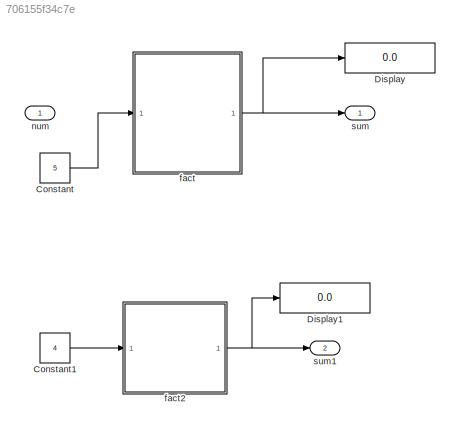
MODEL slx_706155f34c7e
KIND model
CONFIG AbsTol = auto
CONFIG EnableMultiTasking = off
CONFIG FixedStep = auto
CONFIG MaxStep = auto
CONFIG MinStep = auto
CONFIG RelTol = 1e-3
CONFIG SampleTimeConstraint = Unconstrained
CONFIG SolverName = VariableStepAuto
CONFIG StartTime = 0.0
CONFIG StopTime = 10.0
BLOCK [Constant] Constant
  OutDataTypeStr = uint32
  Value = 5
BLOCK [Constant] Constant1
  OutDataTypeStr = uint32
  Value = 4
BLOCK [Display] Display
  Decimation = 1
  Ports = [1]
BLOCK [Display] Display1
  Decimation = 1
  Ports = [1]
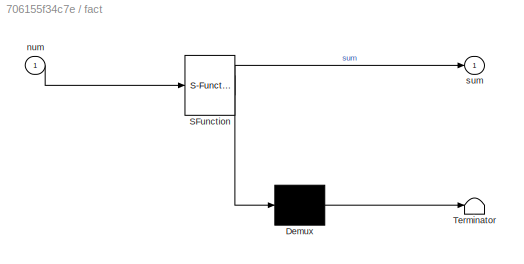
BLOCK [SubSystem] fact
  ErrorFcn = Stateflow.Translate.translate
  PermitHierarchicalResolution = ExplicitOnly
  Ports = [1, 1]
  RequestExecContextInheritance = off
  SFBlockType = Chart
  TreatAsAtomicUnit = on
BLOCK [Demux] fact/ Demux 
  Outputs = 1
  Ports = [1, 1]
BLOCK [S-Function] fact/ SFunction 
  EnableBusSupport = on
  FunctionName = sf_sfun
  PortCounts = [1 2]
  Ports = [1, 2]
  SFcnIsStateOwnerBlock = off
  SFunctionDeploymentMode = off
  Tag = Stateflow S-Function 3
BLOCK [Terminator] fact/ Terminator 
BLOCK [Inport] fact/num
BLOCK [Outport] fact/sum
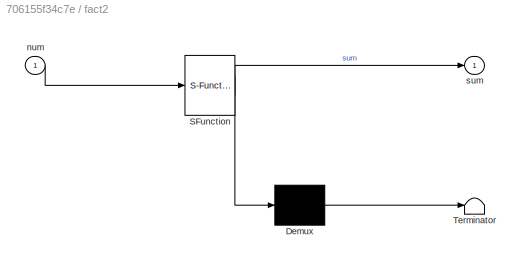
BLOCK [SubSystem] fact2
  ErrorFcn = Stateflow.Translate.translate
  PermitHierarchicalResolution = ExplicitOnly
  Ports = [1, 1]
  RequestExecContextInheritance = off
  SFBlockType = Chart
  TreatAsAtomicUnit = on
BLOCK [Demux] fact2/ Demux 
  Outputs = 1
  Ports = [1, 1]
BLOCK [S-Function] fact2/ SFunction 
  EnableBusSupport = on
  FunctionName = sf_sfun
  PortCounts = [1 2]
  Ports = [1, 2]
  SFcnIsStateOwnerBlock = off
  SFunctionDeploymentMode = off
  Tag = Stateflow S-Function 1
BLOCK [Terminator] fact2/ Terminator 
BLOCK [Inport] fact2/num
BLOCK [Outport] fact2/sum
BLOCK [Inport] num
BLOCK [Outport] sum
BLOCK [Outport] sum1
  Port = 2
LINE Constant1:1 -> fact2:1
LINE Constant:1 -> fact:1
NET fact2:1 -> Display1:1, sum1:1
NET fact:1 -> Display:1, sum:1
note: NET lines group one-source signal fan-out (src -> all destinations, sorted); 1:1 wires keep LINE
CHART fact2 states=2 transitions=3
  STATE_LABEL 'init\nentry:\ni = 1;\nsum = 1;'
  STATE_LABEL 'calc\nentry:\nsum = sum * i;\ni = i +1;'
CHART fact states=0 transitions=7
CHART  states=0 transitions=0
CHART  states=0 transitions=0
